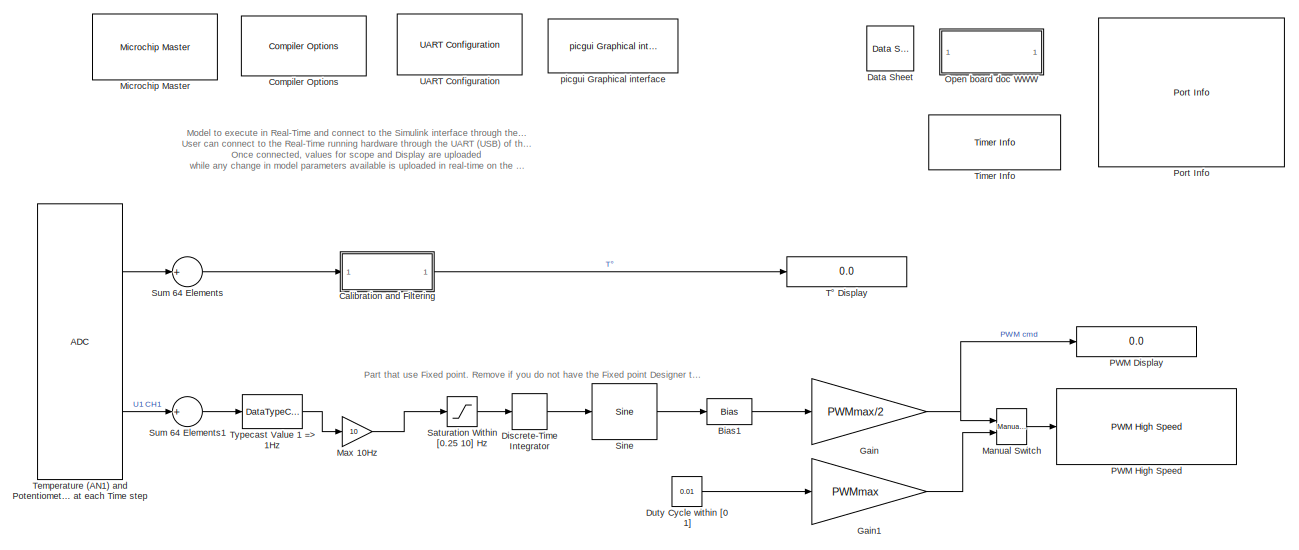
[diagram: root canvas - part 1/2, full width, top band]
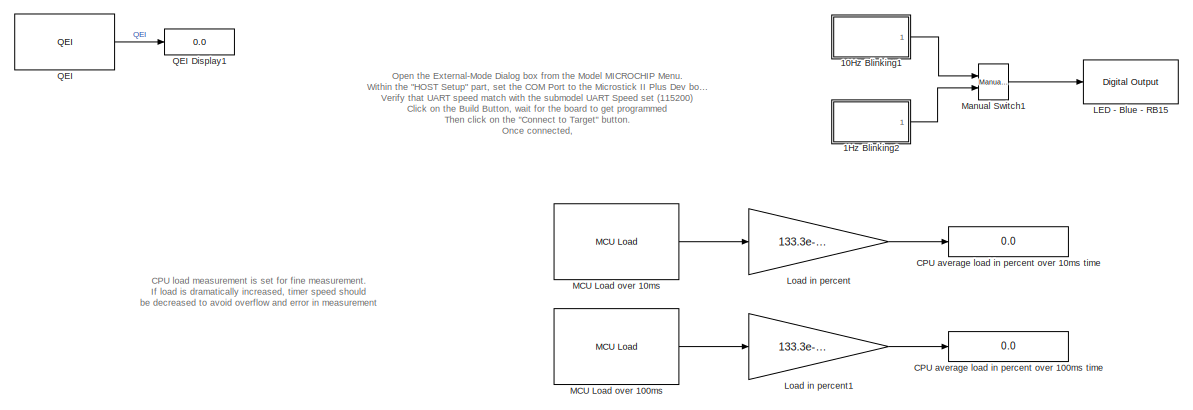
[diagram: root canvas - part 2/2, full width, bottom band]
MODEL slx_fa530b46f95f
KIND model
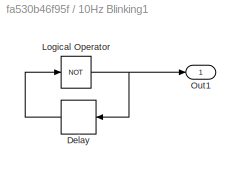
BLOCK [SubSystem] 10Hz Blinking1
  FunctionWithSeparateData = off
  MaskHideContents = off
  MinAlgLoopOccurrences = off
  Opaque = off
  Ports = [0, 1]
  PropExecContextOutsideSubsystem = off
  RTWSystemCode = Auto
  RequestExecContextInheritance = off
BLOCK [Delay] 10Hz Blinking1/Delay
  DelayLength = 1
  InitialCondition = 0
  InputPortMap = u0
  InputProcessing = Inherited
  Ports = [1, 1]
  SampleTime = .05
BLOCK [Logic] 10Hz Blinking1/Logical Operator
  AllPortsSameDT = off
  Operator = NOT
  OutDataTypeStr = boolean
  Ports = [1, 1]
BLOCK [Outport] 10Hz Blinking1/Out1
  IconDisplay = Port number
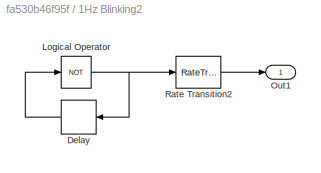
BLOCK [SubSystem] 1Hz Blinking2
  FunctionWithSeparateData = off
  MaskHideContents = off
  MinAlgLoopOccurrences = off
  Opaque = off
  Ports = [0, 1]
  PropExecContextOutsideSubsystem = off
  RTWSystemCode = Auto
  RequestExecContextInheritance = off
BLOCK [Delay] 1Hz Blinking2/Delay
  DelayLength = 1
  InitialCondition = 0
  InputPortMap = u0
  InputProcessing = Inherited
  Ports = [1, 1]
  SampleTime = .5
BLOCK [Logic] 1Hz Blinking2/Logical Operator
  AllPortsSameDT = off
  Operator = NOT
  OutDataTypeStr = boolean
  Ports = [1, 1]
BLOCK [Outport] 1Hz Blinking2/Out1
  IconDisplay = Port number
BLOCK [RateTransition] 1Hz Blinking2/Rate Transition2
  Deterministic = off
  OutPortSampleTime = .05
BLOCK [Bias] Bias1
  Bias = 1
BLOCK [Display] CPU average load in percent over 100ms time
  Decimation = 1
  Format = long
  Lockdown = off
  Ports = [1]
BLOCK [Display] CPU average load in percent over 10ms time
  Decimation = 1
  Format = long
  Lockdown = off
  Ports = [1]
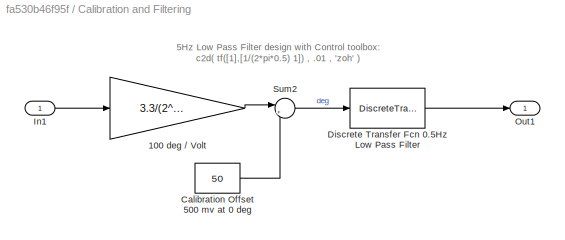
BLOCK [SubSystem] Calibration and Filtering
  FunctionWithSeparateData = off
  MaskHideContents = off
  MinAlgLoopOccurrences = off
  Opaque = off
  Ports = [1, 1]
  PropExecContextOutsideSubsystem = off
  RTWSystemCode = Auto
  RequestExecContextInheritance = off
BLOCK [Gain] Calibration and Filtering/100 deg // Volt 
  Gain = 3.3/(2^16) * 100
  OutDataTypeStr = single
  ParamDataTypeStr = Inherit: Inherit via internal rule
  SaturateOnIntegerOverflow = off
BLOCK [Constant] Calibration and Filtering/Calibration Offset 500 mv at 0 deg
  OutDataTypeStr = Inherit: Inherit via back propagation
  SampleTime = -1
  Value = 50
BLOCK [DiscreteTransferFcn] Calibration and Filtering/Discrete Transfer Fcn 0.5Hz Low Pass Filter
  Denominator = [1 -0.96907]
  InputPortMap = u0
  Numerator = [0.030928]
  Ports = [1, 1]
BLOCK [Inport] Calibration and Filtering/In1
  IconDisplay = Port number
BLOCK [Outport] Calibration and Filtering/Out1
  IconDisplay = Port number
BLOCK [Sum] Calibration and Filtering/Sum2
  AccumDataTypeStr = Inherit: Same as first input
  IconShape = round
  InputSameDT = off
  Inputs = |+-
  OutDataTypeStr = Inherit: Inherit via internal rule
  Ports = [2, 1]
  SaturateOnIntegerOverflow = off
BLOCK [Reference] Compiler Options  REF=MCHP_Blockset/System Configuration/Compiler Options
  AssemblyListing = off
  COMP_LIST = Dynamic Options
  COMP_LIST_TXT = xc16 - v1.26
  DEBUG_INFO = off
  HEAP_SIZE = 0
  LATEST_CMPLR = on
  MCHP_MASTERLINK = Microstick_II_PlusDevBoard_33EP128MC202_ExternalMode_R2012a/Microchip Master
  MCHP_MULTITHREAD_COMPILATION = on
  MCODE = is more than 32768
  MCONST = in code memory
  MDATA = Can use all available memory
  MPLAB_LINKLIB = default
  MPLAB_LINKLIB1 = default
  MSCALAR = Can use all available memory
  OMF = elf
  OMIT_FRAME_POINTER = off
  OPTIMIZATION_LEVEL = 1
  PROCEDURAL_ABSTRACTION = off
  Ports = []
  Priority = 1
  ProduceHexOutput = on
  SourceBlock = MCHP_Blockset/System Configuration/Compiler Options
  UNROLL_LOOPS = off
  USE_64BIT_DOUBLE = off
BLOCK [Reference] Data Sheet  REF=MCHP_Blockset/System Info/Data Sheet
  AttributesFormatString = %<cpy_MCHP_Id>
  DOC_FileLastCheckTime = [0 0 0 0 0 0]
  DOC_MCHP_Id = 33FJ64MC802
  DOC_Type = datasheet
  MCHP_MASTERLINK = Microstick_II_PlusDevBoard_33EP128MC202_ExternalMode_R2012a/Microchip Master
  Ports = []
  SourceBlock = MCHP_Blockset/System Info/Data Sheet
  cpy_MCHP_Id = 33EP128MC202
BLOCK [DiscreteIntegrator] Discrete-Time Integrator
  ICPrevOutput = DiscIntNeverNeededParam
  ICPrevScaledInput = DiscIntNeverNeededParam
  IntegratorMethod = Accumulation: Forward Euler
  OutDataTypeStr = fixdt(0,16,16)
  Ports = [1, 1]
  SampleTime = .01
  gainval = 1
BLOCK [Constant] Duty Cycle within [0 1]
  OutDataTypeStr = fixdt(0,16,16)
  Value = 0.01
BLOCK [Gain] Gain
  Gain = PWMmax/2
  OutDataTypeStr = uint16
  ParamDataTypeStr = Inherit: Inherit via internal rule
  RndMeth = Simplest
  SaturateOnIntegerOverflow = off
BLOCK [Gain] Gain1
  Gain = PWMmax
  OutDataTypeStr = uint16
  ParamDataTypeStr = Inherit: Inherit via internal rule
  RndMeth = Simplest
  SaturateOnIntegerOverflow = off
BLOCK [Reference] LED - Blue - RB15  REF=MCHP_Blockset/Digital IO/Digital Output
  MCHP_MASTERLINK = Microstick_II_PlusDevBoard_33EP128MC202_ExternalMode_R2012a/Microchip Master
  ORDERING = None
  PACK = off
  PIN = [15]
  PORT = Dynamic Options
  PORT_TXT = B   [ 0 : 15 ]
  Ports = [1]
  READPREVIOUS = off
  SIMULTANEOUS = off
  SampleTime = -1
  SourceBlock = MCHP_Blockset/Digital IO/Digital Output
BLOCK [Gain] Load in percent
  Gain = 133.3e-9 / .01 * 100
  OutDataTypeStr = single
  OutMax = [20]
  OutMin = [0]
  ParamDataTypeStr = Inherit: Inherit from 'Gain'
  SaturateOnIntegerOverflow = off
BLOCK [Gain] Load in percent1
  Gain = 133.3e-9 / .1 * 100
  OutDataTypeStr = single
  OutMax = [20]
  OutMin = [0]
  ParamDataTypeStr = Inherit: Inherit from 'Gain'
  SaturateOnIntegerOverflow = off
BLOCK [Reference] MCU Load over 100ms  REF=MCHP_Blockset/Profiling/MCU Load
  Info = Timer 1:  Resol: 133.304768(ns)  -  Max: 8.73626(ms)
  MCHP_COMPILED_INFO = CompiledSampleTime= [0.10000000000000001   0 ];CompiledInportDataTypes=[ ];CompiledInportDataWidth=[];
  MCHP_MASTERLINK = Microstick_II_PlusDevBoard_33EP128MC202_ExternalMode_R2012a/Microchip Master
  MCHP_TIMER_REQUEST = {MCU_Load}{MCU_Load}21:5:0:0:[]:524288;
  MCHP_TIMER_RESULT = [1 65535 ]
  MCULoadMeasure = on
  MCULoadPin = Dynamic Options
  MCULoadPin_TXT = None
  Ports = [0, 1]
  SampleTime = .1
  SourceBlock = MCHP_Blockset/Profiling/MCU Load
  SourceType = MCU Load (Profile execution time)
  TIMER_Resolution = Dynamic Options
  TIMER_Resolution_TXT = Resol: 0.1333(us)  -  Max: 8.74(ms)
BLOCK [Reference] MCU Load over 10ms  REF=MCHP_Blockset/Profiling/MCU Load
  Info = Timer 1:  Resol: 133.304768(ns)  -  Max: 8.73626(ms)
  MCHP_COMPILED_INFO = CompiledSampleTime= [0.01   0 ];CompiledInportDataTypes=[ ];CompiledInportDataWidth=[];
  MCHP_MASTERLINK = Microstick_II_PlusDevBoard_33EP128MC202_ExternalMode_R2012a/Microchip Master
  MCHP_TIMER_REQUEST = {MCU_Load}{MCU_Load}21:5:0:0:[]:524288;
  MCHP_TIMER_RESULT = [1 65535 ]
  MCULoadMeasure = on
  MCULoadPin = Dynamic Options
  MCULoadPin_TXT = None
  Ports = [0, 1]
  SampleTime = .01
  SourceBlock = MCHP_Blockset/Profiling/MCU Load
  SourceType = MCU Load (Profile execution time)
  TIMER_Resolution = Dynamic Options
  TIMER_Resolution_TXT = Resol: 0.1333(us)  -  Max: 8.74(ms)
BLOCK [Reference] Manual Switch  REF=simulink/Signal
Routing/Manual Switch
  Ports = [2, 1]
  SourceBlock = simulink/Signal\nRouting/Manual Switch
  SourceType = Manual Switch
  action = 0
  sw = 1
  varsize = off
BLOCK [Reference] Manual Switch1  REF=simulink/Signal
Routing/Manual Switch
  Ports = [2, 1]
  SourceBlock = simulink/Signal\nRouting/Manual Switch
  SourceType = Manual Switch
  action = 0
  sw = 1
  varsize = off
BLOCK [Gain] Max 10Hz
  Gain = 10
  OutDataTypeStr = fixdt(0,16)
  OutMax = [20]
  OutMin = [0]
  ParamDataTypeStr = fixdt(1,16,8)
  SaturateOnIntegerOverflow = off
BLOCK [Reference] Microchip Master  REF=MCHP_Blockset/System Configuration/Microchip Master
  ACTIV_PLL = on
  ACTIV_PLL_spd = on
  AIVTDIS = Disable Alternate Vector Table
  ALTADREF = AVREF+/AVREF- are mapped to RA9/RA10
  ALTCMPI = C1INC is on RB13; C2INC is on RB9 and C3INC is on RA0
  ALTCVREF = CVREF+/CVREF- are mapped to RA9/RA10
  ALTI2C = I2C mapped to SDA1/SCL1 pins
  ALTI2C1 = I2C1 mapped to SDA1/SCL1 pins
  ALTI2C2 = I2C2 mapped to SDA2/SCL2 pins
  ALTPMP = EPMP pins are in default location mode
  ALTQIO = QEA1; QEB1; INDX1 are selected as inputs to QEI1
  ALTRB6 = Append the RP6/ASCL1/PMPD6 functions of RB6 to RA1 pin functions
  ALTSS1 = SS1A is selected as the I/O pin for SPI1
  ALTVREF = Voltage reference input; ADC =RA9/RA10 Comparator =RA9;RA10
  APL = Aux Flash Code protect is disabled
  APLK = Aux Flash Write Protection or Code Protection is Enabled
  ATMOD8 = Not used
  AWRP = Aux Flash may be written
  BACKBUG = Not used
  BKBUG = Device resets into Operational mode
  BODENV = 2.7V
  BOOTISA = Boot code and Exception code is MIPS32
  BOREN = Disable
  BOREN0 = Enabled
  BOREN1 = BOR Enabled [When BOREN=1]
  BORV = Brown-out Reset set at 2.0V
  BSEN = No Boot Segment
  BSLIM = Not used
  BSS = No boot program Flash segment
  BSS2 = No Boot Segment
  BTMODE = Device is in Single Boot (legacy) mode
  BTSWP = Not used
  BUSYFLAG = Dynamic Options
  BUSYFLAG_TXT = None
  BWP = Protection Disabled
  BWRP = Boot Segment may be written
  CMPPOL0 = Hysteresis is applied to falling edge
  CMPPOL1 = Hysteresis is applied to falling edge
  COE = Reset Into Operational Mode
  CP = Protection Disabled
  CSEQ = Not used
  CSS = No Protection (other than CWRP)
  CTXT1 = Not Assigned
  CTXT2 = Not Assigned
  CWRP = Configuration Segment may be written
  DBCC = Not used
  DBGPER = Allow CPU access to all permission regions
  DEBUG = Debugger is disabled
  DFMCY = Not used
  DISUVREG = Regulator is disabled
  DMTCNT = 2^31 (2147483648)
  DMTEN = Dead Man Timer is Enabled and cannot be disabled by software
  DMTINTV = Window/Interval value is 127/128 counter value
  DMTIVT = Not used
  DSBOREN = Deep Sleep BOR enabled in Deep Sleep
  DSLPBOR = Deep Sleep BOR enabled in Deep Sleep
  DSSWEN = Deep Sleep is controlled by the register bit DSEN
  DSWDTEN = DSWDT enabled
  DSWDTOSC = DSWDT uses Low Power RC Oscillator (LPRC)
  DSWDTPS = 1:2;147;483;648 (25.7 Days)
  EBS = No Boot EEPROM
  EJTAGBEN = Normal EJTAG functionality
  ESS = No Segment Data EEPROM
  EXTDDRSIZE = External DDR2 Size is 128 MB
  FCANIO = Default CAN I/O
  FCKSM = Clock switching is enabled;Fail-safe Clock Monitor is disabled
  FCKSMEN = Sw Disabled; Mon Disabled
  FDMTEN = Deadman Timer is disabled
  FECCCON = ECC and Dynamic ECC are disabled (ECCCON bits are writable)
  FETHIO = Default Ethernet I/O
  FMIIEN = MII Enabled
  FNOSC = Internal Fast RC (FRC)
  FOS = Internal Fast RC
  FOSFPR = HS3 w/PLL 16x
  FPBDIV = Pb_Clk is Sys_Clk/8
  FPLLICLK = FRC is input to the System PLL
  FPLLIDIV = 8x Divider
  FPLLMUL = 24x Multiplier
  FPLLMULT = PLL Multiply by 128
  FPLLODIV = 32x Divider
  FPLLRNG = 34-68 MHz Input
  FPR = ECIO w/ PLL 16x
  FPWRT = 128ms
  FRANGE = High Range
  FSLEEP = Flash is powered down when the device is in Sleep mode
  FSOSCEN = Enable SOSC
  FSRSSEL = SRS Priority 7
  FUSBIDIO = Controlled by the USB Module
  FVBUSONIO = Controlled by USB Module
  FWDTEN = Disable
  FWDTWINSZ = Window size is 25%
  FWPSA = 1:512
  FWPSA0 = 1:128
  FWPSB = 1:16
  GCP = General Segment Code protect is disabled
  GSS = User program memory is not code-protected
  GSS0 = No protection
  GSSK = General Segment Write Protection or Code Protection is Enabled
  GWRP = General Segment may be written
  HPOL = PWM module high side output pins have active-high output polarity
  HYST0 = 45 mV Hysteresis
  HYST1 = 45 mV Hysteresis
  I2C1SEL = Use Default SCL1/SDA1 Pins For I2C1
  I2C2SEL = I2C2 is multiplexed to SDA2/RA3 and SCL2/RA2
  ICESEL = Communicate on PGEC1/PGED1
  ICS = Communicate on PGEC1 and PGED1
  IESO = Start up with FRC; then switch
  IOL1WAY = Allow multiple reconfigurations
  JTAGEN = Disable
  LPCFG = Disabled - regardless of RETEN
  LPOL = PWM module low side output pins have active-high output polarity
  LPRCSEL = High Power; High Accuracy Mode
  LVRCFG = Low Voltage regulator is not available
  MCHPVAR = MCHP.fcy.periph=MCHP_Fun.Hex2num('[418C9DC9C9249248]');MCHP.fcy.MIPS=MCHP_Fun.Hex2num('[418C9DC9C9249248]');MCHP.PowerSave=0;MCHP.TimeStepFactor=MCHP_Fun.Hex2num('[3FEFFD5F0EEB0E81]');MCHP.TimeStep_Timer=-1;MCHP.NTIMERS=5;MCHP.id.name='33EP128MC202';MCHP.id.N=reshape([33 128 202],1,3);MCHP.id.L=reshape({ 'EP','MC',''},1,3);MCHP.id.Arch=3;MCHP.periph.PPS.reg_RPINRx=reshape([-1 1 1 -1 -1 -1 1 -1 -1 ...<+5790ch>
  MCHP_CRC = 3074583
  MCHP_PLLRegisters = [5    226  16387     -1]
  MCHP_TIMER_RESULT = [ ]
  MCLRE = Enabled
  MIPS = 60.012857142857136 * 1e6
  MIPS_DESIRED = 60e6
  MIPS_DESIRED_spd = 60e6
  ON = Not used
  OSCILLATOR_SELECT = Internal Fast RC (FRC)
  OSCILLATOR_SELECT_spd = Internal Fast RC (FRC)
  OSCIOFCN = OSCO/CLKO/RA3 functions as CLKO (FOSC/2)
  OSCIOFNC = OSC2 is general purpose digital I/O pin
  PGL1WAY = Allow only one reconfiguration
  PICREF = 33EP128MC202
  PLL96MHZ = 96 MHz PLL Startup is enabled automatically on start-up
  PLLDIV = PLL is disabled
  PLLKEN = Clock switch to PLL source will wait until the PLL lock signal is valid.
  PLLSS = PLL is fed by the Primary oscillator
  PLL_96MHZ = Enabled
  PMDL1WAY = Allow only one reconfiguration
  POSCBOOST = Boost the kick start of the oscillator
  POSCFREQ = Primary oscillator/external clock input frequency greater than 8MHz
  POSCGAIN = 2x gain setting
  POSCMD = Primary Oscillator Disabled
  POSCMOD = Primary Oscillator Disabled
  POWERSAVE = off
  PWMLOCK = PWM registers may be written without key sequence
  PWMPIN = PWM module pins controlled by PORT register at device Reset
  PWP = Disable
  PWRTEN = PWRT enabled
  Ports = []
  Priority = 1
  QUARTZ = 7.37e+06
  QUARTZ_spd = 7.37e+06
  RBS = No Boot RAM
  RES = Not used
  RES1 = Not used
  RES2 = Not used
  RESERVED1 = Not used
  RETCFG = Retention regulator is not available
  RSS = No Secure RAM
  RSTPRI = Device will obtain reset instruction from Primary flash
  RTCBAT = RTC operation is continued through VBAT
  RTCOSC = RTCC uses Secondary Oscillator (SOSC)
  SEQNUM = Not used
  SMCLR = MCLR pin generates a normal system Reset
  SOSCBOOST = Boost the kick start of the oscillator
  SOSCGAIN = 2x gain setting
  SOSCSEL = Secondary oscillator configured for high-power operation
  SOSCSRC = Analog Mode for use with crystal
  SSS = No Secure Segment
  SWRP = Secure segment may be written
  SourceBlock = MCHP_Blockset/System Configuration/Microchip Master
  TEMP = Not used
  TIMESTEP_REF = ADC  ( 0.01s + [-0.032088%] ==> 0.0099968s )
  TRCEN = Trace features in the CPU are enabled
  TSEQ = Not used
  UPLLEN = USB PLL is enabled
  UPLLFSEL = USB PLL input is 24 MHz
  UPLLIDIV = 12x Divider
  USERID = Not used
  VBTBOR = VBAT BOR enabled
  WDT = Disable
  WDTCLK = WDT uses LPRC
  WDTCMX = WDT clock source is determined by the WDTCLK Configuration bits
  WDTEN = Disable
  WDTPOST = 1:32768
  WDTPRE = 1:128
  WDTPS = 1:32768
  WDTSPGM = WDT stops during Flash programming
  WDTWIN = WDT Window is 25% of WDT period
  WINDIS = Watchdog Timer in Non-Window mode
  WPCFG = Disable
  WPDIS = Disable
  WPEND = Write Protect from WPFP to the last page of memory
  WPFP = Page 127 (0x1FC00)
  WUTSEL = Default regulator start-up time used
  WWDTEN = Non-Window mode
  nSEQNUM = Not used
BLOCK [SubSystem] Open board doc WWW
  FunctionWithSeparateData = off
  MaskDisplay = disp('Microstick Plus\nDev Board');
  MaskHideContents = off
  MaskIconFrame = on
  MaskIconOpaque = on
  MaskIconRotate = none
  MaskIconUnits = autoscale
  MaskPortRotate = default
  MinAlgLoopOccurrences = off
  Opaque = off
  OpenFcn = web('www.microchip.com/www.microchip.com/en556208','-browser');\npause(1);\nweb('www.microchip.com/TCAD0014178791','-browser');
  Ports = []
  PropExecContextOutsideSubsystem = off
  RTWSystemCode = Auto
  RequestExecContextInheritance = off
BLOCK [Display] PWM Display
  Decimation = 1
  Format = long
  Lockdown = off
  Ports = [1]
BLOCK [Reference] PWM High Speed  REF=MCHP_Blockset/PWM IO/PWM High Speed
  ADC_VARTRIG = {PWM Primary Special Event Trigger;6}
  InitDC = { '0','0','0.0003','50','50','50','50';'0.001','0.001','0.001','50','50','50','50'}
  InitP2 = { '0.005','0.001','0.001','0.001','0.001','0.001','0.001';'0.001','0.001','0.001','0.001','0.001','0.001','0.001'}
  InitPh = { '0','0','0','0.001','0.001','0.001','0.001';'0','0','0','0.001','0.001','0.001','0.001'}
  MCHP_MASTERLINK = Microstick_II_PlusDevBoard_33EP128MC202_ExternalMode_R2012a/Microchip Master
  MCHP_PORT = {PWM2H}{PWM2H}4:4:B12;
  MCHP_VERSION = v3.38
  ORDERING = None
  Ports = [1]
  S_DWORK_Size = []
  S_DWORK_Type = []
  S_INPUT = [5]
  S_INPUT_Size = [1]
  S_OUTPUT = []
  S_OUTPUT_Size = []
  SampleTime = -1
  SourceBlock = MCHP_Blockset/PWM IO/PWM High Speed
  chk1 = [0  1  0  0  0]
  chkDC = [1  1  1  1  1  1  1 ; 0  0  0  1  1  1  1]
  chkFltBlkOut = [0  0  0  0  0  0  0]
  chkHL1 = [0  1  0  1  1  1  1 ; 0  0  0  1  1  1  1]
  chkP2 = [0  1  0  1  1  1  1 ; 1  0  0  1  1  1  1]
  chkPh = [0  0  0  1  1  1  1 ; 0  0  0  1  1  1  1]
  chkSEvTrigx = [0  0  1  1  1  1  1]
  edAltDTRx = { '1e-05','0.0001','1e-05','1e-05','1e-05','1e-05','1e-05'}
  edDTRx = { '0.02','1e-05','0.001','1e-05','1e-05','1e-05','1e-05'}
  edSEvTrigx = { '0.0001','-1','-1','-1','-1','-1','-1'}
  maxP1 = { '0.005','0.001','0.001','0.001','0.001','0.001','0.001';'0.001','0.001','1e-06','0.001','0.001','0.001','0.001'}
  pop1 = [1]
  popDT = [3  3  3  3  3  3  3]
  popFlt = [1  1  1  1  1  1  1]
  popFltActivH = [1  2  1  1  1  1  1]
  popFltForceH = [2  2  2  2  2  2  2]
  popFltForceL = [1  1  1  1  1  1  1]
  popFltPin = [24  25  20   4   4   4   4]
  popFltPinRp = [1  1  1  1  1  1  1]
BLOCK [Reference] Port Info  REF=MCHP_Blockset/System Info/Port Info
  MCHP_MASTERLINK = Microstick_II_PlusDevBoard_33EP128MC202_ExternalMode_R2012a/Microchip Master
  Ports = []
  SourceBlock = MCHP_Blockset/System Info/Port Info
BLOCK [Reference] QEI  REF=MCHP_Blockset/QEI/QEI
  FILTER_CutOffFreq = 100e3
  FILTREN = on
  HOMPOL = on
  IDXPOL = off
  IMV = QEA = 1 and QEB = 0
  IMV_x2 = QEA = 1
  INDXxCNT_Output = is not an output
  INTxHLD_Output = is not an output
  MCHP_MASTERLINK = Microstick_II_PlusDevBoard_33EP128MC202_ExternalMode_R2012a/Microchip Master
  MCHP_PORT = {QEI1 A}{QEA1}5:0:P38;{QEI1 B}{QEB1}5:0:P39;
  MaxPeriod = 1e-3
  PCIIRQ = off
  PIMOD_mode = position is cyclique between user defined boundaries
  PIMOD_modeB = Never reset position
  PIMOD_reset = on next INDEX event
  PIN_CCMP = Dynamic Options
  PIN_CCMP_TXT = A4 / P20 / Pin[12]
  PIN_HOME = Dynamic Options
  PIN_HOME_TXT = A4 / P20 / Pin[12]
  PIN_INDEX = Dynamic Options
  PIN_INDEX_TXT = A4 / P20 / Pin[12]
  PIN_QEA = Dynamic Options
  PIN_QEA_TXT = B6 / P38 / Pin[15]
  PIN_QEB = Dynamic Options
  PIN_QEB_TXT = B7 / P39 / Pin[16]
  POSxCNT_Output = is a 16 bits unsigned block output
  Ports = [0, 1]
  QEAPOL = off
  QEBPOL = off
  QEI_IntPri = 5
  QEI_MODE = Quadrature Encoder
  QEI_PulseCountDir = Down
  QEI_REF = 1
  QEI_x2mode = off
  QEIxIC = 52
  QEIxLEC_GEC = [0 256]
  QFDIV_popup = Dynamic Options
  QFDIV_popup_TXT = 78.14 kHz
  RESET_Input = off
  SWPAB = off
  SampleTime = .01
  SourceBlock = MCHP_Blockset/QEI/QEI
  SourceType = Output Driver for Quadrature Encoder Interface (QEI) peripheral
  VELxCNT_Output = is not an output
BLOCK [Display] QEI Display1
  Decimation = 1
  Format = long
  Lockdown = off
  Ports = [1]
BLOCK [Saturate] Saturation Within [0.25 10] Hz
  InputPortMap = u0
  LowerLimit = 0.25 * .01
  Ports = [1, 1]
  UpperLimit = 10 * .01
BLOCK [Reference] Sine  REF=simulink/Lookup
Tables/Sine
  Formula = sin(2*pi*u)
  NumDataPoints = (2^5)+1
  OutputWordLength = 16
  Ports = [1, 1]
  SourceBlock = simulink/Lookup\nTables/Sine
  SourceType = Sine and Cosine
BLOCK [Sum] Sum 64 Elements
  InputSameDT = off
  Inputs = +
  OutDataTypeStr = Inherit: Inherit via internal rule
  Ports = [1, 1]
  SaturateOnIntegerOverflow = off
BLOCK [Sum] Sum 64 Elements1
  InputSameDT = off
  Inputs = +
  OutDataTypeStr = Inherit: Inherit via internal rule
  Ports = [1, 1]
  SaturateOnIntegerOverflow = off
BLOCK [Reference] Temperature (AN1) and Potentiometer (AN0) 64 X 2 Sample&Convert at each Time step  REF=MCHP_Blockset/Analog IO/ADC
  ADC_DMA_CHANNEL = use DMA Channel 0
  ADC_REF = 1
  ADC_TIMING = [0.0099967911637982368]
  ADxCSS = [1]
  FORM = 0000 dddd dddd dddd ==> Unsigned integer
  Info = Total Time for Sample & Conversion : 0.0099968s including 6.9019e-05s (x 64) sample time. Difference with time step is : 3.2088e-06s
  MCHP_MASTERLINK = Microstick_II_PlusDevBoard_33EP128MC202_ExternalMode_R2012a/Microchip Master
  MCHP_PORT = {Analog Input 0}{AN0}15:2:A0;{Analog Input 1}{AN1}15:2:A1;
  MUXA_CH0N = off
  MUXA_CH123 = Dynamic Options
  MUXA_CH123_TXT = AN0 : AN1 : AN2
  MUXB_CH0 = AN1
  MUXB_CH0N = on
  MUXB_CH123 = Dynamic Options
  MUXB_CH123_TXT = AN0 : AN1 : AN2
  Mode = 10 bits (allows exact simultaneous sampling)
  Ports = [0, 2]
  Priority = 5
  SIMULTANEOUS = Simultaneously on all Channels
  SSRC_SSRCG = Dynamic Options
  SSRC_SSRCG_TXT = 6
  SampleTime = 0.01
  SequenceRepeat = 64
  SequenceTiming = are stretcheded to fit exactly previous time step
  SourceBlock = MCHP_Blockset/Analog IO/ADC
  Trig_TimeStep = with each update of the ADC block output
  Update_BlockOutput = After all trig and conversion sequence
  nSAMPLECHANNELS = CH0 : CH1
  nSAMPLECHANNELS_12bits = CH0 only
BLOCK [Reference] Timer Info  REF=MCHP_Blockset/System Info/Timer Info
  MCHP_MASTERLINK = Microstick_II_PlusDevBoard_33EP128MC202_ExternalMode_R2012a/Microchip Master
  Ports = []
  SourceBlock = MCHP_Blockset/System Info/Timer Info
BLOCK [DataTypeConversion] Typecast Value 1 => 1Hz
  ConvertRealWorld = Stored Integer (SI)
  OutDataTypeStr = fixdt(0,16,2^-16 * .01,0)
  RndMeth = Floor
  SaturateOnIntegerOverflow = off
BLOCK [Display] T° Display
  Decimation = 1
  Format = long
  Lockdown = off
  Ports = [1]
BLOCK [Reference] UART Configuration  REF=MCHP_Blockset/BUS UART/UART Configuration
  ALT_IO = on
  BAUD_Choice = Dynamic Options
  BAUD_Choice_IR = Dynamic Options
  BAUD_Choice_IR_InitSeq = Dynamic Options
  BAUD_Choice_IR_InitSeq_TXT = 0
  BAUD_Choice_IR_TXT = []
  BAUD_Choice_InitSeq = Dynamic Options
  BAUD_Choice_InitSeq_TXT = 110         [+0.00%]
  BAUD_Choice_TXT = 115200         [+0.18%]
  BAUD_Custom = 115200
  BAUD_Custom_InitSeq = 0
  FlowControl = None
  IRDA = off
  InitSequence = 'Hello World'
  InitSequence_chkbox = off
  MCHP_COM_ExtPil = on
  MCHP_MASTERLINK = Microstick_II_PlusDevBoard_33EP128MC202_ExternalMode_R2012a/Microchip Master
  MCHP_PORT = {UART1  Rx}{U1RX}3:0:P43;{UART1  Tx}{U1TX}3:1:P42;
  PIN_CTS = Dynamic Options
  PIN_CTS_TXT = B0 / P32 / Pin[4]
  PIN_RTS = Dynamic Options
  PIN_RTS_TXT = A4 / P20 / Pin[12]
  PIN_RX = Dynamic Options
  PIN_RX_TXT = B11 / P43 / Pin[22]
  PIN_TX = Dynamic Options
  PIN_TX_TXT = B10 / P42 / Pin[21]
  Ports = []
  RX_CIRCULAR_SIZE = 128
  RX_IMPLEMENTATION = Circular Buffer
  RX_INT_PRIORITY = 6
  RX_INT_WHEN = receive 1 character
  SourceBlock = MCHP_Blockset/BUS UART/UART Configuration
  SourceType = Configuration for UART peripheral
  TX_CIRCULAR_SIZE = 128
  TX_DMA_CHANNEL = 0   (Lowest Priority)
  TX_DMA_SIZE = []
  TX_IMPLEMENTATION = Circular Buffer
  TX_INT_PRIORITY = 5
  TX_INT_WHEN = is empty
  UART_REF = 1
BLOCK [Reference] picgui Graphical interface  REF=MCHP_Blockset/BUS UART/picgui
Graphical interface
  Nothing = 0
  Ports = []
  SourceBlock = MCHP_Blockset/BUS UART/picgui\nGraphical interface
ANNOTATION (root): CPU load measurement is set for fine measurement. If load is dramatically increased, timer speed should be decreased to avoid overflow and error in measurement
ANNOTATION (root): Model to execute in Real-Time and connect to the Simulink interface through the External-Mode interface.. User can connect to the Real-Time running hardware through the UART (USB) of the board. Once connected, values for scope and Display are uploaded while any change in model parameters available is uploaded in real-time on the target.
ANNOTATION (root): Open the External-Mode Dialog box from the Model MICROCHIP Menu. Within the "HOST Setup" part, set the COM Port to the Microstick II Plus Dev board UART (through USB) Verify that UART speed match with the submodel UART Speed set (115200) Click on the Build Button, wait for the board to get programmed Then click on the "Connect to Target" button. Once connected, - you can see uploaded values withi ...<+106ch>
ANNOTATION (root): Part that use Fixed point. Remove if you do not have the Fixed point Designer toolbox
ANNOTATION Calibration and Filtering: 5Hz Low Pass Filter design with Control toolbox: c2d( tf([1],[1/(2*pi*0.5) 1]) , .01 , 'zoh' )
LINE 10Hz Blinking1/Delay:1 -> 10Hz Blinking1/Logical Operator:1
NET 10Hz Blinking1/Logical Operator:1 -> 10Hz Blinking1/Delay:1, 10Hz Blinking1/Out1:1
LINE 10Hz Blinking1:1 -> Manual Switch1:1
LINE 1Hz Blinking2/Delay:1 -> 1Hz Blinking2/Logical Operator:1
NET 1Hz Blinking2/Logical Operator:1 -> 1Hz Blinking2/Delay:1, 1Hz Blinking2/Rate Transition2:1
LINE 1Hz Blinking2/Rate Transition2:1 -> 1Hz Blinking2/Out1:1
LINE 1Hz Blinking2:1 -> Manual Switch1:2
LINE Bias1:1 -> Gain:1
LINE Calibration and Filtering/100 deg // Volt :1 -> Calibration and Filtering/Sum2:1
LINE Calibration and Filtering/Calibration Offset 500 mv at 0 deg:1 -> Calibration and Filtering/Sum2:2
LINE Calibration and Filtering/Discrete Transfer Fcn 0.5Hz Low Pass Filter:1 -> Calibration and Filtering/Out1:1
LINE Calibration and Filtering/In1:1 -> Calibration and Filtering/100 deg // Volt :1
LINE Calibration and Filtering/Sum2:1 -> Calibration and Filtering/Discrete Transfer Fcn 0.5Hz Low Pass Filter:1
LINE Calibration and Filtering:1 -> T° Display:1
LINE Discrete-Time Integrator:1 -> Sine:1
LINE Duty Cycle within [0 1]:1 -> Gain1:1
LINE Gain1:1 -> Manual Switch:2
NET Gain:1 -> Manual Switch:1, PWM Display:1
LINE Load in percent1:1 -> CPU average load in percent over 100ms time:1
LINE Load in percent:1 -> CPU average load in percent over 10ms time:1
LINE MCU Load over 100ms:1 -> Load in percent1:1
LINE MCU Load over 10ms:1 -> Load in percent:1
LINE Manual Switch1:1 -> LED - Blue - RB15:1
LINE Manual Switch:1 -> PWM High Speed:1
LINE Max 10Hz:1 -> Saturation Within [0.25 10] Hz:1
LINE QEI:1 -> QEI Display1:1
LINE Saturation Within [0.25 10] Hz:1 -> Discrete-Time Integrator:1
LINE Sine:1 -> Bias1:1
LINE Sum 64 Elements1:1 -> Typecast Value 1 => 1Hz:1
LINE Sum 64 Elements:1 -> Calibration and Filtering:1
LINE Temperature (AN1) and Potentiometer (AN0) 64 X 2 Sample&Convert at each Time step:1 -> Sum 64 Elements:1
LINE Temperature (AN1) and Potentiometer (AN0) 64 X 2 Sample&Convert at each Time step:2 -> Sum 64 Elements1:1
LINE Typecast Value 1 => 1Hz:1 -> Max 10Hz:1
note: NET lines group one-source signal fan-out (src -> all destinations, sorted); 1:1 wires keep LINE
